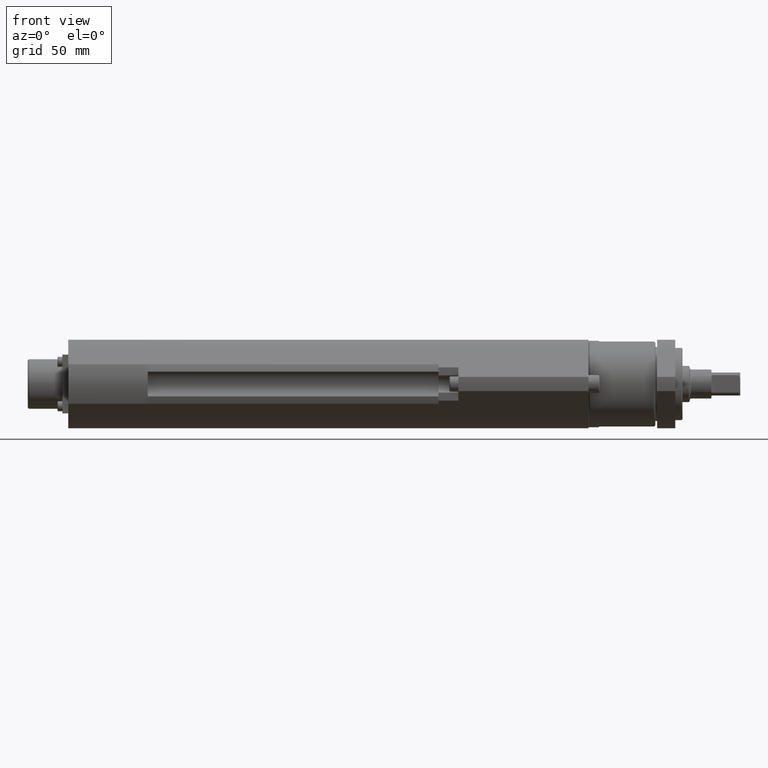
[diagram: clean part render]
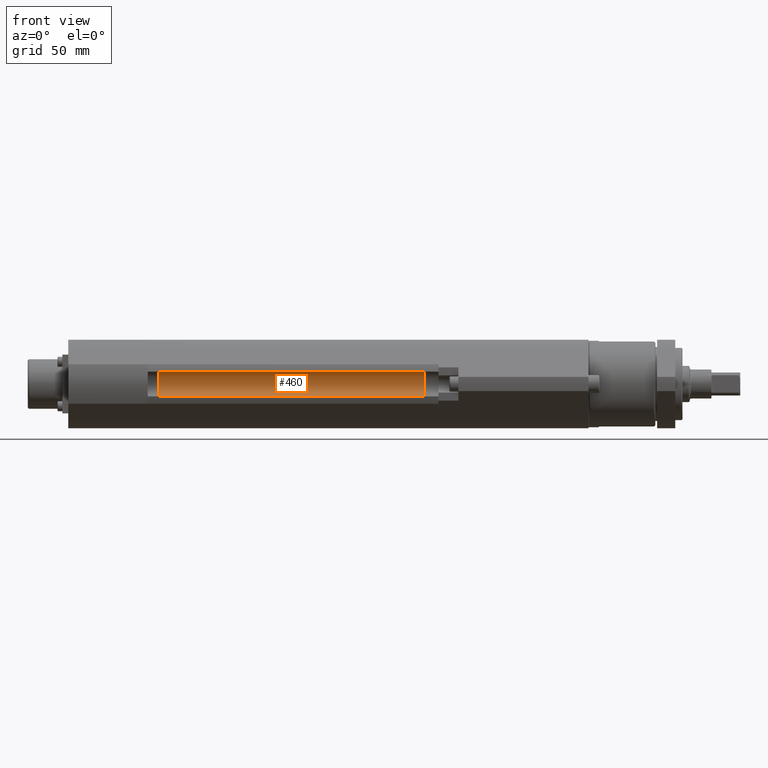
[diagram: same view with one face highlighted and labeled with its STEP entity id]
A machine part, front view. The second image highlights one B-rep face of the part: STEP entity #460.
In plain terms, the highlighted cylindrical surface (edge-blend (fillet) strip) has radius 9 mm, axis along (1, -0, -0).
Its self-contained STEP definition (entity closure, byte-faithful):
#187 = VECTOR ( 'NONE', #5742, 1000.000000000000000 ) ;
#295 = DIRECTION ( 'NONE',  ( 0.0000000000000000000, 0.0000000000000000000, 1.000000000000000000 ) ) ;
#296 = DIRECTION ( 'NONE',  ( 0.0000000000000000000, 0.0000000000000000000, 1.000000000000000000 ) ) ;
#311 = VERTEX_POINT ( 'NONE', #7524 ) ;
#389 = DIRECTION ( 'NONE',  ( 1.000000000000000000, -0.0000000000000000000, -0.0000000000000000000 ) ) ;
#460 = ADVANCED_FACE ( 'NONE', ( #4751 ), #963, .F. ) ;
#474 = EDGE_LOOP ( 'NONE', ( #1370, #3831, #5108, #7563 ) ) ;
#963 = CYLINDRICAL_SURFACE ( 'NONE', #6770, 9.000000000000010700 ) ;
#1057 = CIRCLE ( 'NONE', #2964, 9.000000000000010700 ) ;
#1370 = ORIENTED_EDGE ( 'NONE', *, *, #3145, .T. ) ;
#1499 = CIRCLE ( 'NONE', #3593, 9.000000000000010700 ) ;
#1820 = CARTESIAN_POINT ( 'NONE',  ( -286.0000000000000600, -27.15151515151514900, -6.840703544010901600 ) ) ;
#2066 = LINE ( 'NONE', #4288, #187 ) ;
#2301 = EDGE_CURVE ( 'NONE', #311, #6520, #2066, .T. ) ;
#2426 = CARTESIAN_POINT ( 'NONE',  ( -139.0000000000000000, -27.15151515151514500, 6.840703544010898100 ) ) ;
#2964 = AXIS2_PLACEMENT_3D ( 'NONE', #8897, #4567, #296 ) ;
#3077 = VECTOR ( 'NONE', #5414, 1000.000000000000000 ) ;
#3145 = EDGE_CURVE ( 'NONE', #8868, #6520, #1057, .T. ) ;
#3593 = AXIS2_PLACEMENT_3D ( 'NONE', #8896, #4566, #295 ) ;
#3831 = ORIENTED_EDGE ( 'NONE', *, *, #2301, .F. ) ;
#4079 = CARTESIAN_POINT ( 'NONE',  ( -139.0000000000000000, -27.15151515151514900, -6.840703544010901600 ) ) ;
#4288 = CARTESIAN_POINT ( 'NONE',  ( -286.0000000000000600, -27.15151515151514500, 6.840703544010898100 ) ) ;
#4566 = DIRECTION ( 'NONE',  ( 1.000000000000000000, -0.0000000000000000000, -0.0000000000000000000 ) ) ;
#4567 = DIRECTION ( 'NONE',  ( 1.000000000000000000, -0.0000000000000000000, -0.0000000000000000000 ) ) ;
#4664 = DIRECTION ( 'NONE',  ( 0.0000000000000000000, 0.0000000000000000000, -1.000000000000000000 ) ) ;
#4751 = FACE_OUTER_BOUND ( 'NONE', #474, .T. ) ;
#5108 = ORIENTED_EDGE ( 'NONE', *, *, #8559, .F. ) ;
#5414 = DIRECTION ( 'NONE',  ( 1.000000000000000000, -0.0000000000000000000, -0.0000000000000000000 ) ) ;
#5722 = EDGE_CURVE ( 'NONE', #8796, #8868, #7375, .T. ) ;
#5742 = DIRECTION ( 'NONE',  ( 1.000000000000000000, -0.0000000000000000000, -0.0000000000000000000 ) ) ;
#6126 = CARTESIAN_POINT ( 'NONE',  ( -286.0000000000000600, -27.15151515151514900, -6.840703544010901600 ) ) ;
#6520 = VERTEX_POINT ( 'NONE', #2426 ) ;
#6770 = AXIS2_PLACEMENT_3D ( 'NONE', #6817, #389, #4664 ) ;
#6817 = CARTESIAN_POINT ( 'NONE',  ( -286.0000000000000600, -33.00000000000000000, 0.0000000000000000000 ) ) ;
#7375 = LINE ( 'NONE', #6126, #3077 ) ;
#7524 = CARTESIAN_POINT ( 'NONE',  ( -286.0000000000000600, -27.15151515151514500, 6.840703544010898100 ) ) ;
#7563 = ORIENTED_EDGE ( 'NONE', *, *, #5722, .T. ) ;
#8559 = EDGE_CURVE ( 'NONE', #8796, #311, #1499, .T. ) ;
#8796 = VERTEX_POINT ( 'NONE', #1820 ) ;
#8868 = VERTEX_POINT ( 'NONE', #4079 ) ;
#8896 = CARTESIAN_POINT ( 'NONE',  ( -286.0000000000000600, -33.00000000000000000, 0.0000000000000000000 ) ) ;
#8897 = CARTESIAN_POINT ( 'NONE',  ( -139.0000000000000000, -33.00000000000000000, 0.0000000000000000000 ) ) ;